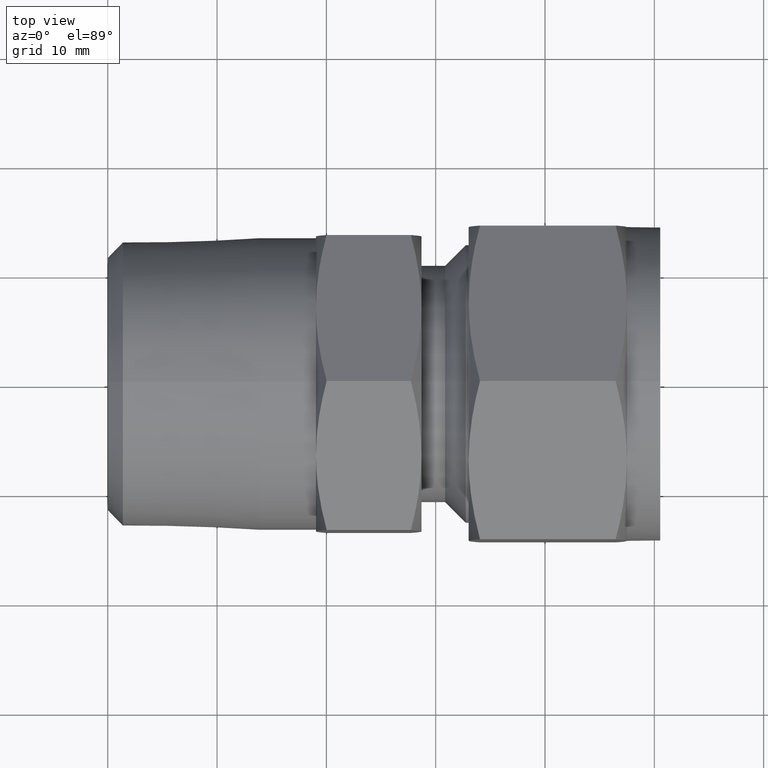
[diagram: clean part render]
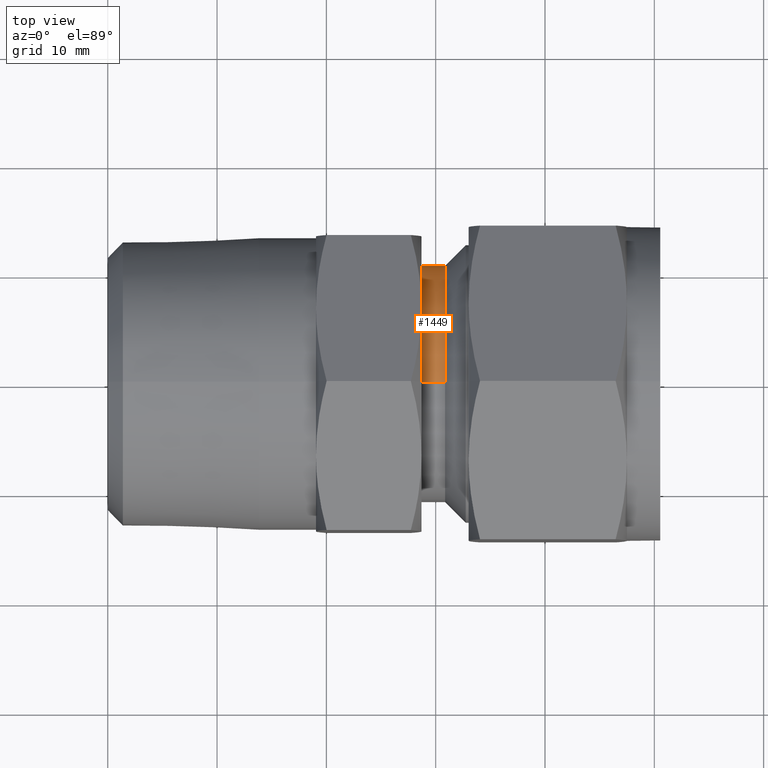
[diagram: same view with one face highlighted and labeled with its STEP entity id]
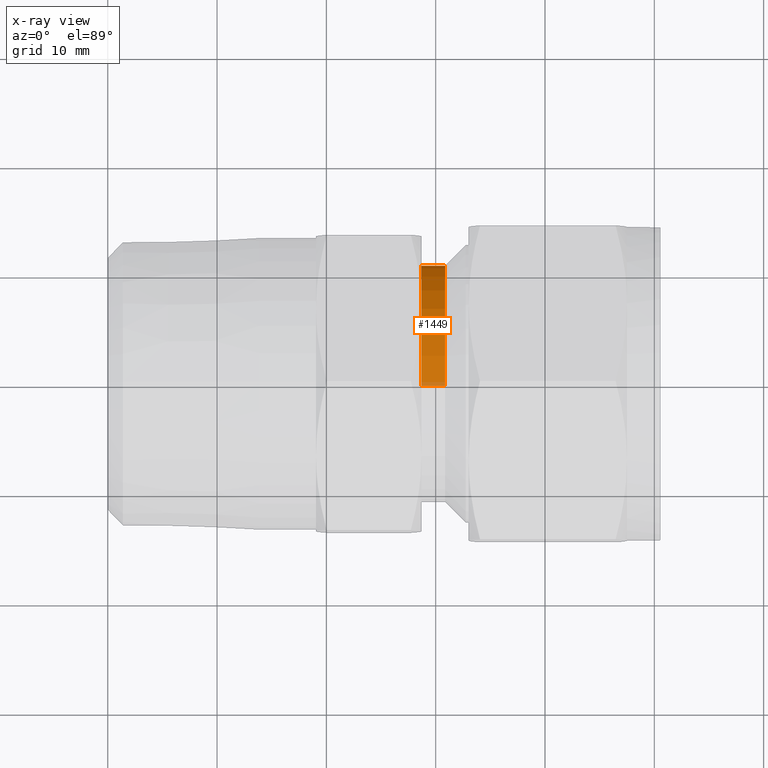
[diagram: x-ray of the same camera — body ghosted, the highlighted face saturated]
A machine part, top view. The second image highlights one B-rep face of the part: STEP entity #1449.
The next image is the same camera in x-ray: the body ghosted, the highlighted face saturated — about 3% of this face is hidden behind the body in this view.
In plain terms, the highlighted cylindrical surface (partial cylindrical patch) has radius 10.8102 mm, axis along (-1, 0, 0).
Its self-contained STEP definition (entity closure, byte-faithful):
#4 = AXIS2_PLACEMENT_3D ( 'NONE', #1300, #1718, #596 ) ;
#148 = LINE ( 'NONE', #306, #909 ) ;
#173 = EDGE_CURVE ( 'NONE', #1786, #1773, #392, .T. ) ;
#190 = ORIENTED_EDGE ( 'NONE', *, *, #1450, .F. ) ;
#268 = ORIENTED_EDGE ( 'NONE', *, *, #1417, .F. ) ;
#306 = CARTESIAN_POINT ( 'NONE',  ( 29.78149999999999764, -1.563526010051049867E-15, 10.81024000000000029 ) ) ;
#350 = VERTEX_POINT ( 'NONE', #422 ) ;
#361 = AXIS2_PLACEMENT_3D ( 'NONE', #482, #1240, #1631 ) ;
#388 = EDGE_LOOP ( 'NONE', ( #268, #519, #1254, #190 ) ) ;
#392 = LINE ( 'NONE', #1645, #1831 ) ;
#422 = CARTESIAN_POINT ( 'NONE',  ( 28.70199999999999818, -2.431753848220580074E-31, 10.81024000000000029 ) ) ;
#425 = CARTESIAN_POINT ( 'NONE',  ( 29.78149999999999764, -2.396971510165709800E-16, -2.396971510165709800E-16 ) ) ;
#431 = DIRECTION ( 'NONE',  ( -1.000000000000000000, 2.220446049250309876E-16, 2.220446049250309876E-16 ) ) ;
#482 = CARTESIAN_POINT ( 'NONE',  ( 30.86100000000000065, -4.793943020331430446E-16, -4.793943020331430446E-16 ) ) ;
#519 = ORIENTED_EDGE ( 'NONE', *, *, #583, .T. ) ;
#583 = EDGE_CURVE ( 'NONE', #803, #1773, #807, .T. ) ;
#596 = DIRECTION ( 'NONE',  ( 3.209407887293542289E-16, -2.249491082733209991E-32, 1.000000000000000000 ) ) ;
#771 = DIRECTION ( 'NONE',  ( 1.000000000000000000, -2.220446049250309876E-16, -2.220446049250309876E-16 ) ) ;
#803 = VERTEX_POINT ( 'NONE', #1086 ) ;
#807 = CIRCLE ( 'NONE', #361, 10.81024000000000029 ) ;
#869 = DIRECTION ( 'NONE',  ( -1.000000000000000000, 2.220446049250309876E-16, 2.220446049250309876E-16 ) ) ;
#876 = CYLINDRICAL_SURFACE ( 'NONE', #1103, 10.81024000000000029 ) ;
#909 = VECTOR ( 'NONE', #431, 1000.000000000000000 ) ;
#1086 = CARTESIAN_POINT ( 'NONE',  ( 30.86100000000000065, -6.115905579282679928E-16, 10.81024000000000029 ) ) ;
#1103 = AXIS2_PLACEMENT_3D ( 'NONE', #425, #869, #1436 ) ;
#1120 = CARTESIAN_POINT ( 'NONE',  ( 30.86100000000000065, 8.444345570013399839E-16, -10.81024000000000029 ) ) ;
#1240 = DIRECTION ( 'NONE',  ( -1.000000000000000000, 2.220446049250309876E-16, 2.220446049250309876E-16 ) ) ;
#1252 = CIRCLE ( 'NONE', #4, 10.81024000000000029 ) ;
#1254 = ORIENTED_EDGE ( 'NONE', *, *, #173, .F. ) ;
#1300 = CARTESIAN_POINT ( 'NONE',  ( 28.70199999999999818, 0.000000000000000000, 0.000000000000000000 ) ) ;
#1417 = EDGE_CURVE ( 'NONE', #803, #350, #148, .T. ) ;
#1436 = DIRECTION ( 'NONE',  ( 3.209407887293542289E-16, -2.226974082429293767E-32, 1.000000000000000000 ) ) ;
#1449 = ADVANCED_FACE ( 'NONE', ( #1564 ), #876, .T. ) ;
#1450 = EDGE_CURVE ( 'NONE', #350, #1786, #1252, .T. ) ;
#1564 = FACE_OUTER_BOUND ( 'NONE', #388, .T. ) ;
#1631 = DIRECTION ( 'NONE',  ( 3.209407887293542289E-16, -2.672368898915152521E-32, 1.000000000000000000 ) ) ;
#1645 = CARTESIAN_POINT ( 'NONE',  ( 29.78149999999999764, 1.084131708017910076E-15, -10.81024000000000029 ) ) ;
#1677 = CARTESIAN_POINT ( 'NONE',  ( 28.70199999999999818, 1.323828859034479873E-15, -10.81024000000000029 ) ) ;
#1718 = DIRECTION ( 'NONE',  ( -1.000000000000000000, 2.220446049250309876E-16, 2.220446049250309876E-16 ) ) ;
#1773 = VERTEX_POINT ( 'NONE', #1120 ) ;
#1786 = VERTEX_POINT ( 'NONE', #1677 ) ;
#1831 = VECTOR ( 'NONE', #771, 1000.000000000000000 ) ;